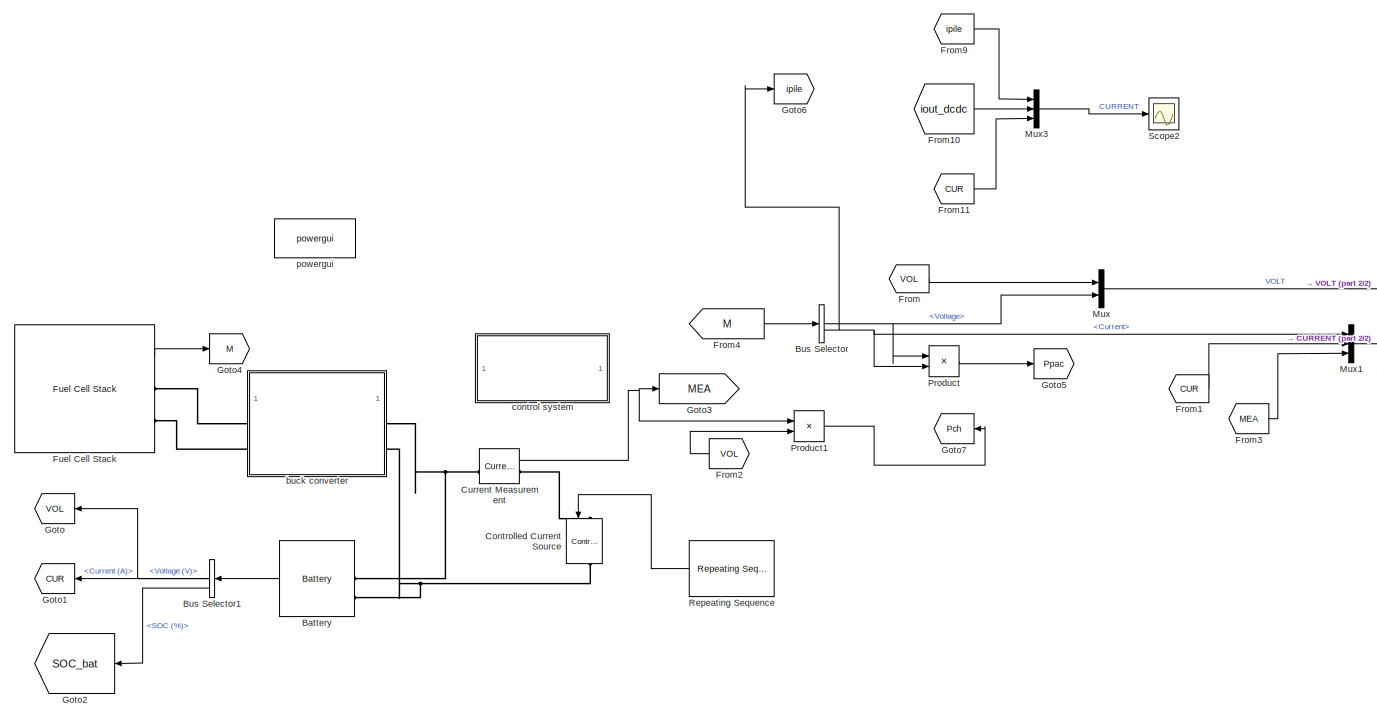
[diagram: root canvas - part 1/2, most of the canvas]
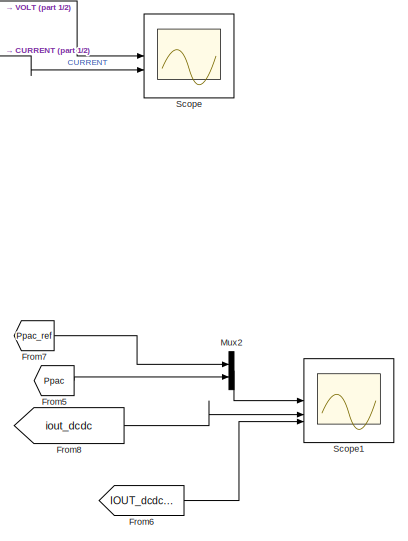
[diagram: root canvas - part 2/2, bottom right region]
MODEL slx_4aa5610f0349
KIND model
CONFIG AbsTol = auto
CONFIG EnableMultiTasking = off
CONFIG FixedStep = auto
CONFIG MaxStep = auto
CONFIG MinStep = auto
CONFIG RelTol = 1e-3
CONFIG SampleTimeConstraint = Unconstrained
CONFIG SolverName = VariableStepDiscrete
CONFIG StartTime = 0.0
CONFIG StopTime = 1
BLOCK [Reference] Battery  REF=spsBatteryLib/Battery
  LibrarySourceBlock = electricdrivelib/Extra Sources/Battery
  SourceBlock = spsBatteryLib/Battery
  SourceType = Battery
BLOCK [BusSelector] Bus Selector
  OutputSignals = Voltage,Current
BLOCK [BusSelector] Bus Selector1
  NameLocation = top
  OutputSignals = Voltage (V),Current (A),SOC (%)
BLOCK [Reference] Controlled Current Source  REF=spsControlledCurrentSourceLib/Controlled Current Source
  LibrarySourceBlock = sps_lib/Sources/Controlled Current Source
  NameLocation = left
  SourceBlock = spsControlledCurrentSourceLib/Controlled Current Source
  SourceType = Controlled Current Source
BLOCK [Reference] Current Measurement  REF=spsCurrentMeasurementLib/Current Measurement
  LibrarySourceBlock = sps_lib/Sensors and Measurements/Current Measurement
  SourceBlock = spsCurrentMeasurementLib/Current Measurement
  SourceType = Current Measurement
  UserDataPersistent = on
BLOCK [From] From
  GotoTag = VOL
  TagVisibility = global
BLOCK [From] From1
  GotoTag = CUR
  TagVisibility = global
BLOCK [From] From10
  GotoTag = iout_dcdc
  TagVisibility = global
BLOCK [From] From11
  GotoTag = CUR
  NameLocation = top
  TagVisibility = global
BLOCK [From] From2
  GotoTag = VOL
  TagVisibility = global
BLOCK [From] From3
  GotoTag = MEA
BLOCK [From] From4
  GotoTag = M
BLOCK [From] From5
  GotoTag = Ppac
BLOCK [From] From6
  GotoTag = IOUT_dcdcRef
  TagVisibility = global
BLOCK [From] From7
  GotoTag = Ppac_ref
  TagVisibility = global
BLOCK [From] From8
  GotoTag = iout_dcdc
  TagVisibility = global
BLOCK [From] From9
  GotoTag = ipile
BLOCK [Reference] Fuel Cell Stack  REF=spsFuelCellStackLib/Fuel Cell Stack
  LibrarySourceBlock = electricdrivelib/Extra Sources/Fuel Cell Stack
  SourceBlock = spsFuelCellStackLib/Fuel Cell Stack
  SourceType = Fuel Cell Stack
BLOCK [Goto] Goto
  GotoTag = VOL
  NameLocation = top
  TagVisibility = global
BLOCK [Goto] Goto1
  GotoTag = CUR
  NameLocation = top
  TagVisibility = global
BLOCK [Goto] Goto2
  GotoTag = SOC_bat
  NameLocation = top
  TagVisibility = global
BLOCK [Goto] Goto3
  GotoTag = MEA
BLOCK [Goto] Goto4
  GotoTag = M
BLOCK [Goto] Goto5
  GotoTag = Ppac
BLOCK [Goto] Goto6
  GotoTag = ipile
BLOCK [Goto] Goto7
  GotoTag = Pch
  NameLocation = top
  TagVisibility = global
BLOCK [Mux] Mux
  DisplayOption = bar
  Inputs = 2
BLOCK [Mux] Mux1
  DisplayOption = bar
  Inputs = 3
BLOCK [Mux] Mux2
  DisplayOption = bar
  Inputs = 2
BLOCK [Mux] Mux3
  DisplayOption = bar
  Inputs = 3
BLOCK [Product] Product
BLOCK [Product] Product1
BLOCK [Reference] Repeating Sequence  REF=simulink/Sources/Repeating
Sequence
  NameLocation = top
  SourceBlock = simulink/Sources/Repeating\nSequence
  SourceType = Repeating table
BLOCK [Scope] Scope
  Floating = off
  NumInputPorts = 2
  ScopeSpecificationString = Simulink.scopes.TimeScopeBlockCfg('CurrentConfiguration', extmgr.ConfigurationSet(extmgr.Configuration('Core','General UI',true),extmgr.Configuration('Core','Source UI',true),extmgr.Configuration('Sources','WiredSimulink',true),extmgr.Configuration('Visuals','Time Domain',true,'SerializedDisplays',{struct('MinYLimReal','23.78207','MaxYLimReal','44.02421','YLabelReal','','MinYLimMag','23.78207','Ma...<+2685ch>
BLOCK [Scope] Scope1
  Floating = off
  NumInputPorts = 3
  ScopeSpecificationString = Simulink.scopes.TimeScopeBlockCfg('CurrentConfiguration', extmgr.ConfigurationSet(extmgr.Configuration('Core','General UI',true),extmgr.Configuration('Core','Source UI',true),extmgr.Configuration('Sources','WiredSimulink',true,'DataLoggingVariableName','ScopeData1'),extmgr.Configuration('Visuals','Time Domain',true,'SerializedDisplays',{struct('MinYLimReal','55.64988','MaxYLimReal','267.67476','YL...<+2772ch>
BLOCK [Scope] Scope2
  Floating = off
  NumInputPorts = 1
  ScopeSpecificationString = Simulink.scopes.TimeScopeBlockCfg('CurrentConfiguration', extmgr.ConfigurationSet(extmgr.Configuration('Core','General UI',true),extmgr.Configuration('Core','Source UI',true),extmgr.Configuration('Sources','WiredSimulink',true,'DataLoggingVariableName','ScopeData1'),extmgr.Configuration('Visuals','Time Domain',true,'SerializedDisplays',{struct('MinYLimReal','-1.97012','MaxYLimReal','10.24048','YLa...<+1448ch>
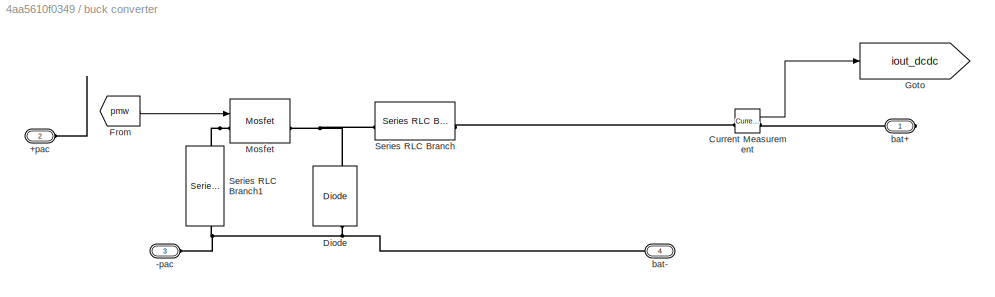
BLOCK [SubSystem] buck converter 
BLOCK [PMIOPort] buck converter /+pac
  Port = 2
  Side = Left
BLOCK [PMIOPort] buck converter /-pac
  Port = 3
  Side = Left
BLOCK [Reference] buck converter /Current Measurement  REF=spsCurrentMeasurementLib/Current Measurement
  LibrarySourceBlock = sps_lib/Sensors and Measurements/Current Measurement
  SourceBlock = spsCurrentMeasurementLib/Current Measurement
  SourceType = Current Measurement
  UserDataPersistent = on
BLOCK [Reference] buck converter /Diode  REF=spsDiodeLib/Diode
  LibrarySourceBlock = sps_lib/Power Electronics/Diode
  NameLocation = right
  SourceBlock = spsDiodeLib/Diode
  SourceType = Diode
BLOCK [From] buck converter /From
  GotoTag = pmw
  NameLocation = top
  TagVisibility = global
BLOCK [Goto] buck converter /Goto
  GotoTag = iout_dcdc
  TagVisibility = global
BLOCK [Reference] buck converter /Mosfet  REF=spsMosfetLib/Mosfet
  LibrarySourceBlock = sps_lib/Power Electronics/Mosfet
  SourceBlock = spsMosfetLib/Mosfet
  SourceType = Mosfet
BLOCK [Reference] buck converter /Series RLC Branch  REF=spsSeriesRLCBranchLib/Series RLC Branch
  LibrarySourceBlock = sps_lib/Passives/Series RLC Branch
  SourceBlock = spsSeriesRLCBranchLib/Series RLC Branch
  SourceType = Series RLC Branch
BLOCK [Reference] buck converter /Series RLC Branch1  REF=spsSeriesRLCBranchLib/Series RLC Branch
  LibrarySourceBlock = sps_lib/Passives/Series RLC Branch
  NameLocation = left
  SourceBlock = spsSeriesRLCBranchLib/Series RLC Branch
  SourceType = Series RLC Branch
BLOCK [PMIOPort] buck converter /bat+
  Side = Right
BLOCK [PMIOPort] buck converter /bat-
  Port = 4
  Side = Right
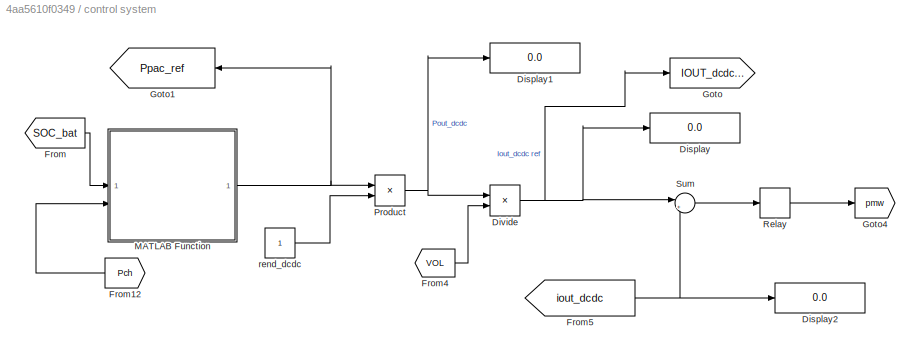
BLOCK [SubSystem] control system
BLOCK [Display] control system/Display
  Decimation = 1
BLOCK [Display] control system/Display1
  Decimation = 1
BLOCK [Display] control system/Display2
  Decimation = 1
BLOCK [Product] control system/Divide
  Inputs = */
BLOCK [From] control system/From
  GotoTag = SOC_bat
  TagVisibility = global
BLOCK [From] control system/From12
  GotoTag = Pch
  TagVisibility = global
BLOCK [From] control system/From4
  GotoTag = VOL
  TagVisibility = global
BLOCK [From] control system/From5
  GotoTag = iout_dcdc
  TagVisibility = global
BLOCK [Goto] control system/Goto
  GotoTag = IOUT_dcdcRef
  TagVisibility = global
BLOCK [Goto] control system/Goto1
  GotoTag = Ppac_ref
  NameLocation = top
  TagVisibility = global
BLOCK [Goto] control system/Goto4
  GotoTag = pmw
  TagVisibility = global
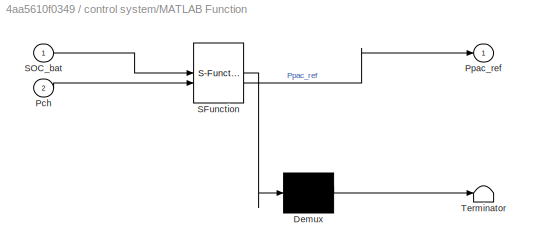
BLOCK [SubSystem] control system/MATLAB Function
  ErrorFcn = Stateflow.Translate.translate
  PermitHierarchicalResolution = ExplicitOnly
  SFBlockType = MATLAB Function
  TreatAsAtomicUnit = on
BLOCK [Demux] control system/MATLAB Function/ Demux 
  Outputs = 1
BLOCK [S-Function] control system/MATLAB Function/ SFunction 
  EnableBusSupport = on
  FunctionName = sf_sfun
  PortCounts = [2 2]
  SFcnIsStateOwnerBlock = off
  SFunctionDeploymentMode = off
  Tag = Stateflow S-Function 2
BLOCK [Terminator] control system/MATLAB Function/ Terminator 
BLOCK [Inport] control system/MATLAB Function/Pch
  Port = 2
BLOCK [Outport] control system/MATLAB Function/Ppac_ref
  VectorParamsAs1DForOutWhenUnconnected = off
BLOCK [Inport] control system/MATLAB Function/SOC_bat
BLOCK [Product] control system/Product
BLOCK [Relay] control system/Relay
  OffSwitchValue = -0.5
  OnSwitchValue = 0.5
BLOCK [Sum] control system/Sum
  Inputs = |+-
BLOCK [Constant] control system/rend_dcdc
BLOCK [Reference] powergui  REF=spspowerguiLib/powergui
  LibrarySourceBlock = sps_lib/powergui
  Priority = 1
  SourceBlock = spspowerguiLib/powergui
  SourceType = PSB option menu block
LINE Battery:1 -> Bus Selector1:1
LINE Bus Selector1:1 -> Goto:1
LINE Bus Selector1:2 -> Goto1:1
LINE Bus Selector1:3 -> Goto2:1
NET Bus Selector:1 -> Mux:2, Product:1
NET Bus Selector:2 -> Goto6:1, Mux1:1, Product:2
NET Current Measurement:1 -> Goto3:1, Product1:1
LINE From10:1 -> Mux3:2
LINE From11:1 -> Mux3:3
LINE From1:1 -> Mux1:2
LINE From2:1 -> Product1:2
LINE From3:1 -> Mux1:3
LINE From4:1 -> Bus Selector:1
LINE From5:1 -> Mux2:2
LINE From6:1 -> Scope1:3
LINE From7:1 -> Mux2:1
LINE From8:1 -> Scope1:2
LINE From9:1 -> Mux3:1
LINE From:1 -> Mux:1
LINE Fuel Cell Stack:1 -> Goto4:1
LINE Mux1:1 -> Scope:2
LINE Mux2:1 -> Scope1:1
LINE Mux3:1 -> Scope2:1
LINE Mux:1 -> Scope:1
LINE Product1:1 -> Goto7:1
LINE Product:1 -> Goto5:1
LINE Repeating Sequence:1 -> Controlled Current Source:1
LINE buck converter /Current Measurement:1 -> buck converter /Goto:1
LINE buck converter /From:1 -> buck converter /Mosfet:1
NET control system/Divide:1 -> control system/Display:1, control system/Goto:1, control system/Sum:1
LINE control system/From12:1 -> control system/MATLAB Function:2
LINE control system/From4:1 -> control system/Divide:2
NET control system/From5:1 -> control system/Display2:1, control system/Sum:2
LINE control system/From:1 -> control system/MATLAB Function:1
NET control system/MATLAB Function:1 -> control system/Goto1:1, control system/Product:1
NET control system/Product:1 -> control system/Display1:1, control system/Divide:1
LINE control system/Relay:1 -> control system/Goto4:1
LINE control system/Sum:1 -> control system/Relay:1
LINE control system/rend_dcdc:1 -> control system/Product:2
PNET net1: Battery:LConn1 -- Current Measurement:LConn1 -- buck converter :RConn1
PNET net2: Battery:LConn2 -- Controlled Current Source:RConn1 -- buck converter :RConn2
PLINE Controlled Current Source:LConn1 -- Current Measurement:RConn1
PLINE Fuel Cell Stack:RConn1 -- buck converter :LConn1
PLINE Fuel Cell Stack:RConn2 -- buck converter :LConn2
PNET net3: buck converter /+pac:RConn1 -- buck converter /Mosfet:LConn1 -- buck converter /Series RLC Branch1:LConn1
PNET net4: buck converter /-pac:RConn1 -- buck converter /Diode:LConn1 -- buck converter /Series RLC Branch1:RConn1 -- buck converter /bat-:RConn1
PLINE buck converter /Current Measurement:LConn1 -- buck converter /Series RLC Branch:RConn1
PLINE buck converter /Current Measurement:RConn1 -- buck converter /bat+:RConn1
PNET net5: buck converter /Diode:RConn1 -- buck converter /Mosfet:RConn1 -- buck converter /Series RLC Branch:LConn1
note: NET lines group one-source signal fan-out (src -> all destinations, sorted); 1:1 wires keep LINE; PNET lines group multi-terminal physical nets as a canonical sorted terminal list (undirected conserving connections); 2-terminal nets keep the pairwise PLINE form
CHART control system/MATLAB Function states=1 transitions=1
  STATE_LABEL 'eML_blk_kernel()'
  STATE_LABEL 'SCRIPT:\nfunction Ppac_ref = func2(SOC_bat, Pch)\n    % Determine Ppac_ref based on SOC_bat and Pch\n    if Pch <= 0\n        if SOC_bat <= 40\n            Ppac_ref = 400;\n        else\n            Ppac_ref = 0;\n        end\n    else\n        % Charging case\n        if SOC_bat >= 80\n            Ppac_ref = 0;\n        elseif SOC_bat >= 60\n            Ppac_ref = 100;\n        elseif SOC_bat >= 40\n            ...<+80ch>'
CHART  states=0 transitions=0
